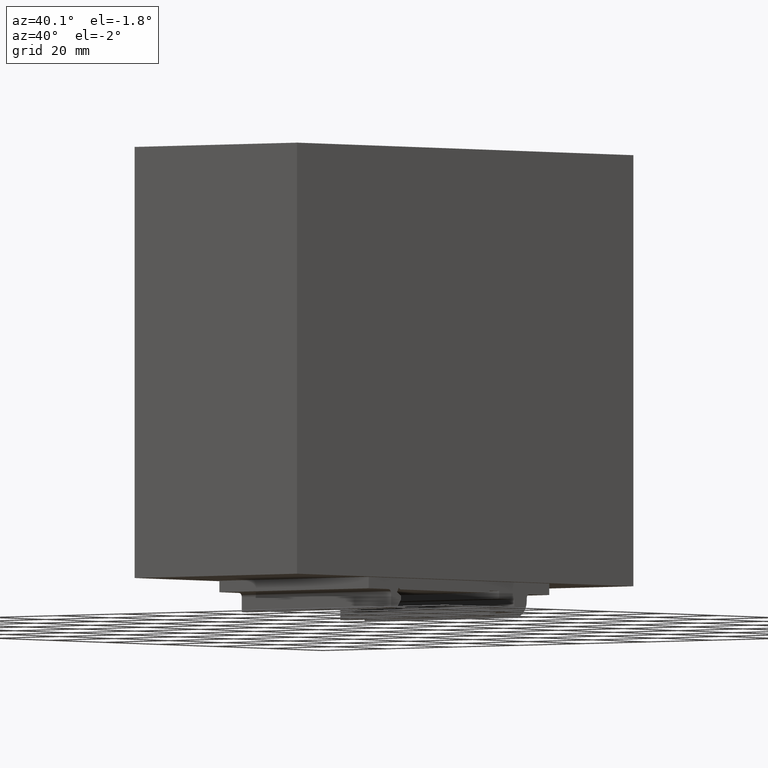
[diagram: clean part render]
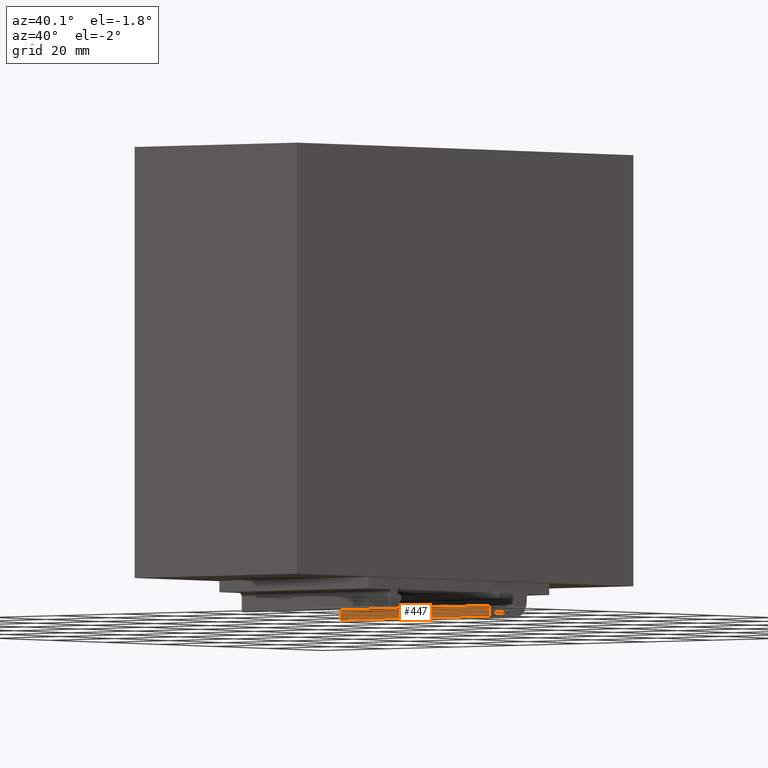
[diagram: same view with one face highlighted and labeled with its STEP entity id]
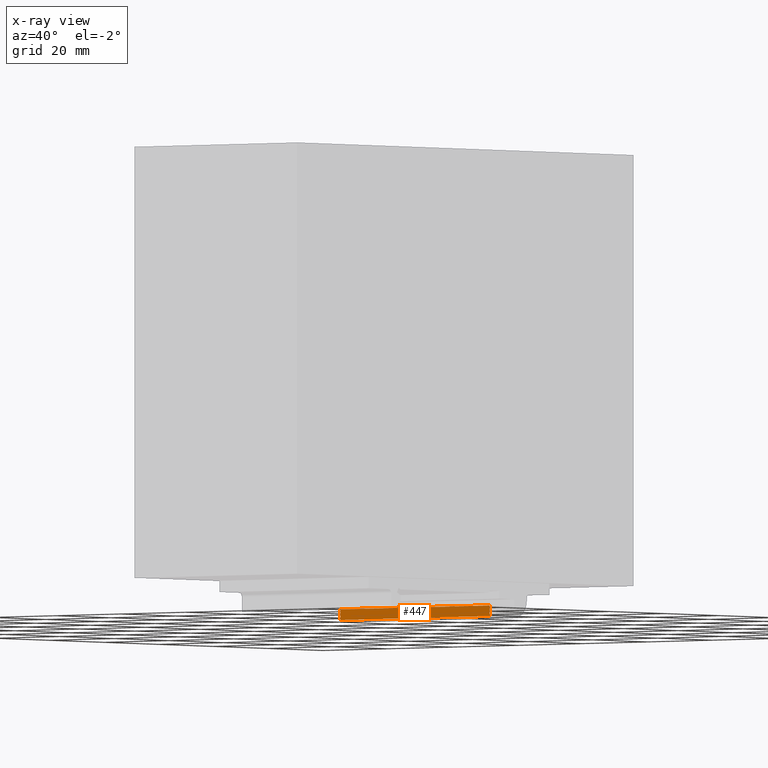
[diagram: x-ray of the same camera — body ghosted, the highlighted face saturated]
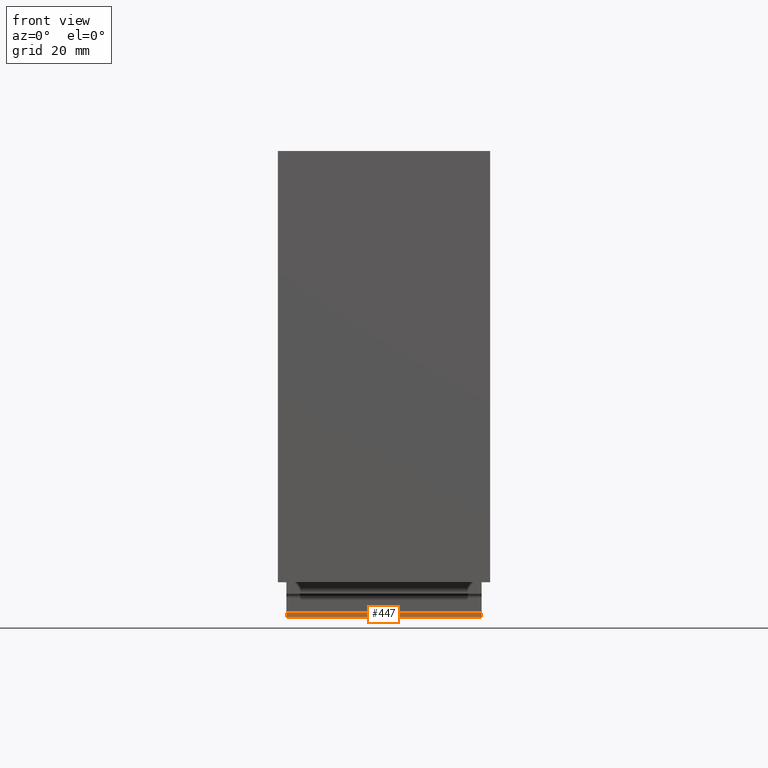
[diagram: same view with one face highlighted and labeled with its STEP entity id]
A machine part, auxiliary view. The second image highlights one B-rep face of the part: STEP entity #447.
The next image is the same camera in x-ray: the body ghosted, the highlighted face saturated — about 2% of this face is hidden behind the body in this view.
A second angle (front view) of the same face is appended — the face is thin or edge-on in the first view.
In plain terms, the highlighted planar face has unit normal (-0, 1, 0).
Its self-contained STEP definition (entity closure, byte-faithful):
#15 = DIRECTION ( 'NONE',  ( -1.000000000000000000, -3.771137991253928600E-017, 0.0000000000000000000 ) ) ;
#132 = LINE ( 'NONE', #638, #344 ) ;
#134 = LINE ( 'NONE', #330, #1075 ) ;
#186 = PLANE ( 'NONE',  #605 ) ;
#187 = CARTESIAN_POINT ( 'NONE',  ( 22.99999999999999300, 11.30000000000001300, -58.99500000000000500 ) ) ;
#260 = DIRECTION ( 'NONE',  ( -0.0000000000000000000, -0.0000000000000000000, 1.000000000000000000 ) ) ;
#295 = DIRECTION ( 'NONE',  ( -1.000000000000000000, -3.771137991253928600E-017, 0.0000000000000000000 ) ) ;
#330 = CARTESIAN_POINT ( 'NONE',  ( -23.00000000000000700, 11.30000000000001100, -58.99500000000000500 ) ) ;
#344 = VECTOR ( 'NONE', #1187, 1000.000000000000000 ) ;
#429 = VERTEX_POINT ( 'NONE', #748 ) ;
#447 = ADVANCED_FACE ( 'NONE', ( #692 ), #186, .F. ) ;
#451 = VECTOR ( 'NONE', #260, 1000.000000000000000 ) ;
#482 = EDGE_CURVE ( 'NONE', #968, #1190, #569, .T. ) ;
#511 = CARTESIAN_POINT ( 'NONE',  ( -23.00000000000000700, 11.30000000000001100, -58.99500000000000500 ) ) ;
#527 = VECTOR ( 'NONE', #295, 1000.000000000000000 ) ;
#533 = CARTESIAN_POINT ( 'NONE',  ( 22.99999999999999300, 11.30000000000001300, -58.99500000000000500 ) ) ;
#556 = ORIENTED_EDGE ( 'NONE', *, *, #886, .T. ) ;
#569 = LINE ( 'NONE', #1091, #527 ) ;
#605 = AXIS2_PLACEMENT_3D ( 'NONE', #187, #843, #15 ) ;
#638 = CARTESIAN_POINT ( 'NONE',  ( 22.99999999999999300, 11.30000000000001300, -56.49500000000000500 ) ) ;
#649 = VERTEX_POINT ( 'NONE', #858 ) ;
#668 = ORIENTED_EDGE ( 'NONE', *, *, #821, .T. ) ;
#676 = ORIENTED_EDGE ( 'NONE', *, *, #713, .F. ) ;
#692 = FACE_OUTER_BOUND ( 'NONE', #785, .T. ) ;
#713 = EDGE_CURVE ( 'NONE', #1190, #649, #134, .T. ) ;
#748 = CARTESIAN_POINT ( 'NONE',  ( 22.99999999999999300, 11.30000000000001300, -56.49500000000000500 ) ) ;
#759 = CARTESIAN_POINT ( 'NONE',  ( 22.99999999999999300, 11.30000000000001300, -58.99500000000000500 ) ) ;
#785 = EDGE_LOOP ( 'NONE', ( #668, #556, #676, #895 ) ) ;
#821 = EDGE_CURVE ( 'NONE', #968, #429, #1090, .T. ) ;
#843 = DIRECTION ( 'NONE',  ( -3.771137991253928600E-017, 1.000000000000000000, 0.0000000000000000000 ) ) ;
#858 = CARTESIAN_POINT ( 'NONE',  ( -23.00000000000000700, 11.30000000000001100, -56.49500000000000500 ) ) ;
#886 = EDGE_CURVE ( 'NONE', #429, #649, #132, .T. ) ;
#895 = ORIENTED_EDGE ( 'NONE', *, *, #482, .F. ) ;
#968 = VERTEX_POINT ( 'NONE', #759 ) ;
#1075 = VECTOR ( 'NONE', #1137, 1000.000000000000000 ) ;
#1090 = LINE ( 'NONE', #533, #451 ) ;
#1091 = CARTESIAN_POINT ( 'NONE',  ( 22.99999999999999300, 11.30000000000001300, -58.99500000000000500 ) ) ;
#1137 = DIRECTION ( 'NONE',  ( -0.0000000000000000000, -0.0000000000000000000, 1.000000000000000000 ) ) ;
#1187 = DIRECTION ( 'NONE',  ( -1.000000000000000000, -3.771137991253928600E-017, 0.0000000000000000000 ) ) ;
#1190 = VERTEX_POINT ( 'NONE', #511 ) ;